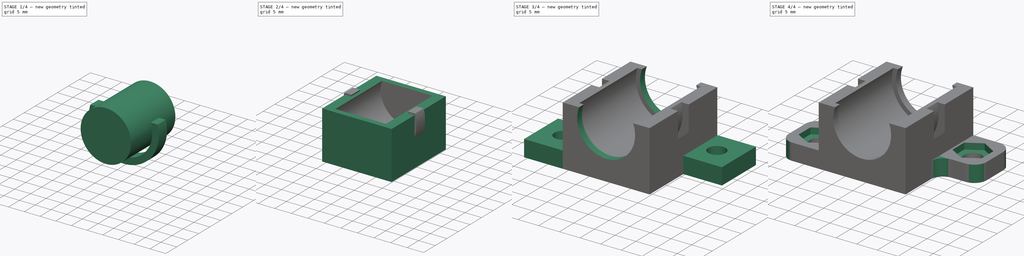
[diagram: build sequence overview — one tinted view per stage of 4, left to right]
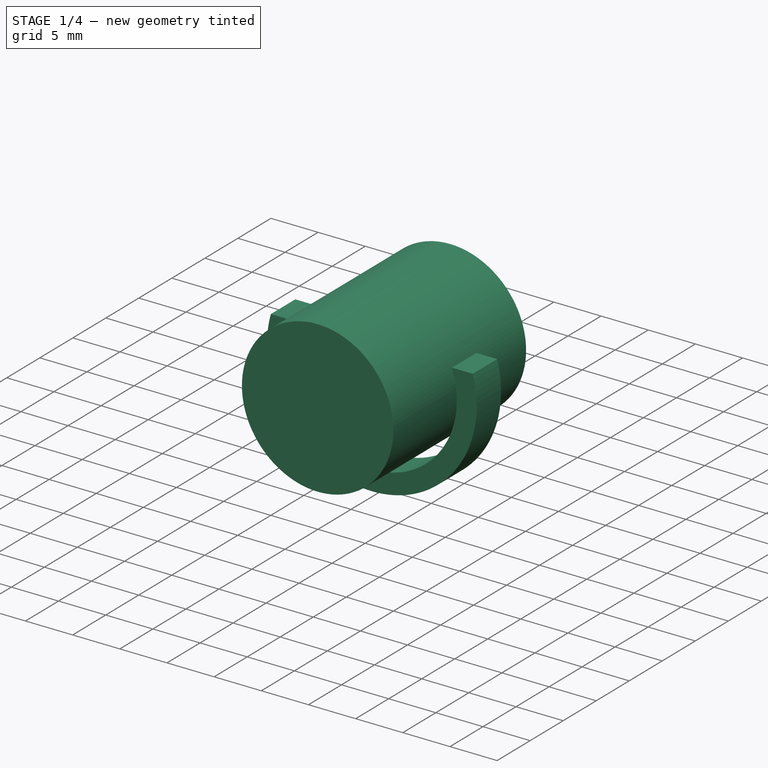
[diagram: stage 1 of 4 — iso view after this stage's code; geometry added in this stage tinted green]
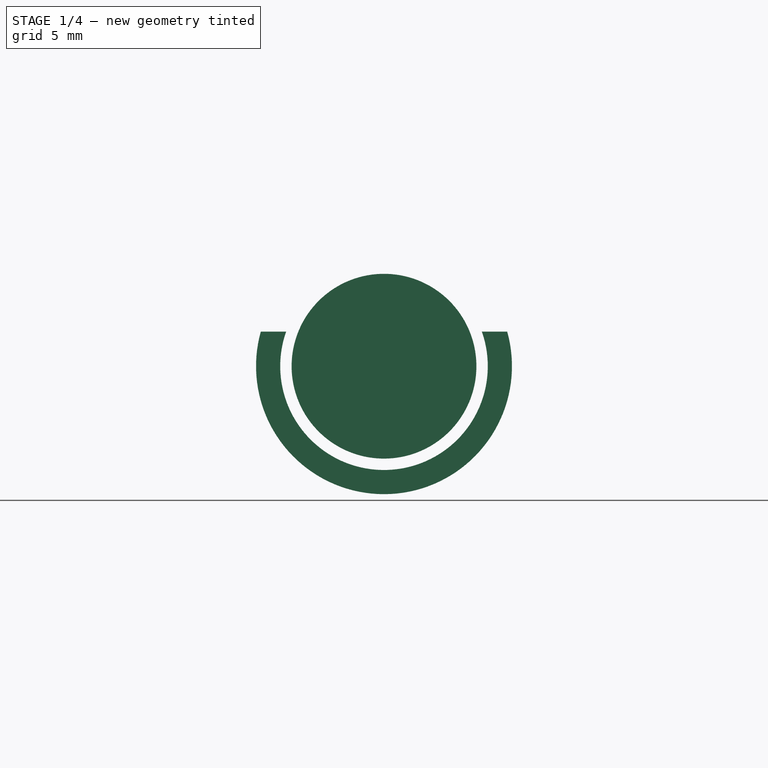
[diagram: stage 1 of 4 — front view after this stage's code; geometry added in this stage tinted green]
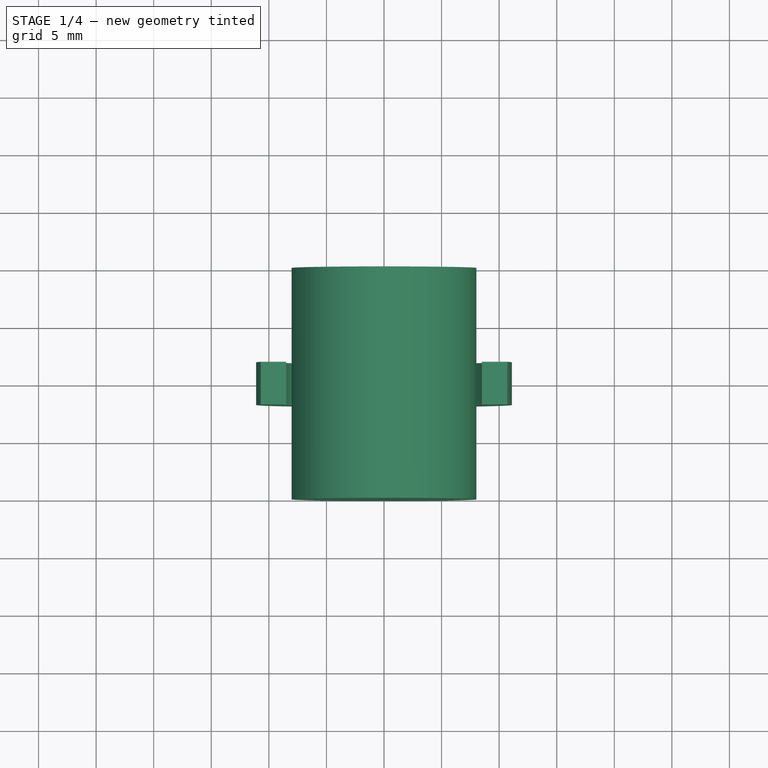
[diagram: stage 1 of 4 — top view after this stage's code; geometry added in this stage tinted green]
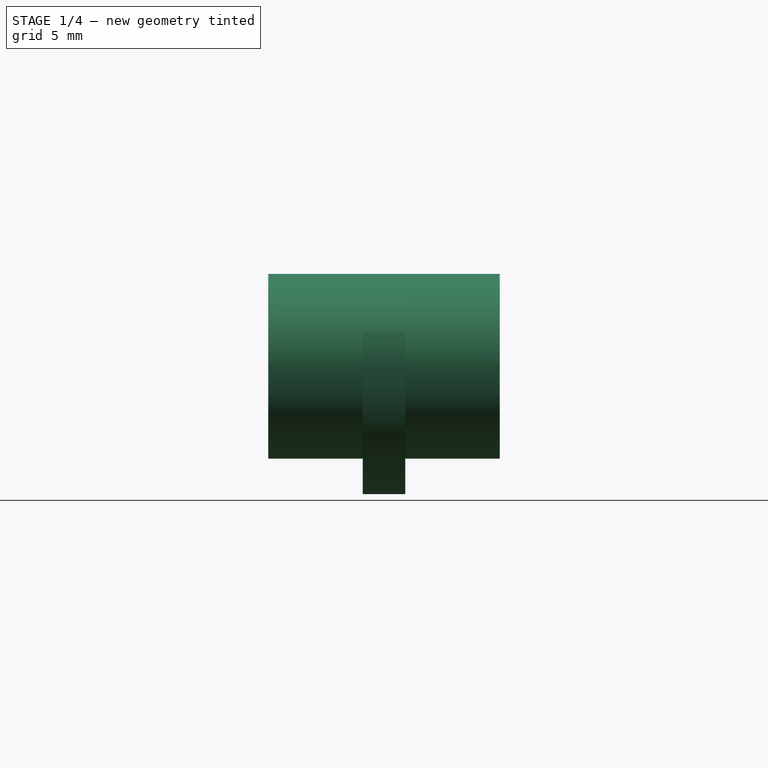
[diagram: stage 1 of 4 — right view after this stage's code; geometry added in this stage tinted green]
FCSTD DOCUMENT  (FreeCAD 0.15R4671 (Git))
Label: Halter Gleitlager XYZ v1
License: All rights reserved
LicenseURL: http://de.wikipedia.org/wiki/Alle_Rechte_vorbehalten
objects: Sketcher::SketchObject×6, PartDesign::Pad×4, Part::Cut×2, PartDesign::Pocket×2, PartDesign::Fillet×1
note: 21 computed .brp shape members not serialized (recipe doc carries the construction recipe); baked Part::Feature solids carry a one-line shape summary decoded from their .brp

FEATURE [Sketcher::SketchObject] Sketch001
  Placement = pos=(0,0,0) rot=(1,0,0;1.5708rad)
  sketch-geometry (1):
    g0: Circle CenterX=0 CenterY=12 CenterZ=0 NormalX=0 NormalY=0 NormalZ=1 Radius=8.025
  constraints (3):
    c: PointOnObject(g0,g-2)
    c: DistanceY(g-1,g0) = 12
    c: Radius(g0) = 8.025
FEATURE [PartDesign::Pad] Pad001
  Length = 20.1
  Length2 = 100
  Midplane = true
  Placement = pos=(0,0,0) rot=(1,0,0;1.5708rad)
  Sketch = -> Sketch001
  Type = 0
FEATURE [Sketcher::SketchObject] Sketch003
  Placement = pos=(0,0,0) rot=(1,0,0;1.5708rad)
  sketch-geometry (5):
    g0: Circle [constr] CenterX=0 CenterY=11.5 CenterZ=0 NormalX=0 NormalY=0 NormalZ=1 Radius=8.55
    g1: LineSegment StartX=-8.5 StartY=15 StartZ=0 EndX=-10.7 EndY=15 EndZ=0
    g2: LineSegment StartX=8.5 StartY=15 StartZ=0 EndX=10.7 EndY=15 EndZ=0
    g3: ArcOfCircle CenterX=0 CenterY=12 CenterZ=0 NormalX=0 NormalY=0 NormalZ=1 Radius=9.01388 StartAngle=2.8023 EndAngle=6.62248
    g4: ArcOfCircle CenterX=0 CenterY=12 CenterZ=0 NormalX=0 NormalY=0 NormalZ=1 Radius=11.1126 StartAngle=2.86824 EndAngle=6.55654
  constraints (19):
    c: PointOnObject(g0,g-2)
    c: Radius(g0) = 8.55
    c: DistanceY(g-1,g0) = 11.5
    c: Symmetric(g1,g2,g-2)
    c: DistanceY(g-1,g2) = 15
    c: DistanceX(g1,g2) = 17
    c: Symmetric(g1,g2,g-2)
    c: Equal(g2,g1)
    c: Horizontal(g2)
    c: Horizontal(g1)
    c: DistanceX(g2) = 2.2
    c: PointOnObject(g3,g-2)
    c: Coincident(g3,g1)
    c: Coincident(g3,g2)
    c: DistanceY(g-1,g3) = 12
    c: PointOnObject(g4,g-2)
    c: Coincident(g4,g1)
    c: Coincident(g4,g2)
    c: DistanceY(g-1,g4) = 12
FEATURE [PartDesign::Pad] Pad002
  Length = 3.7
  Length2 = 100
  Midplane = true
  Placement = pos=(0,0,0) rot=(1,0,0;1.5708rad)
  Sketch = -> Sketch003
  Type = 0
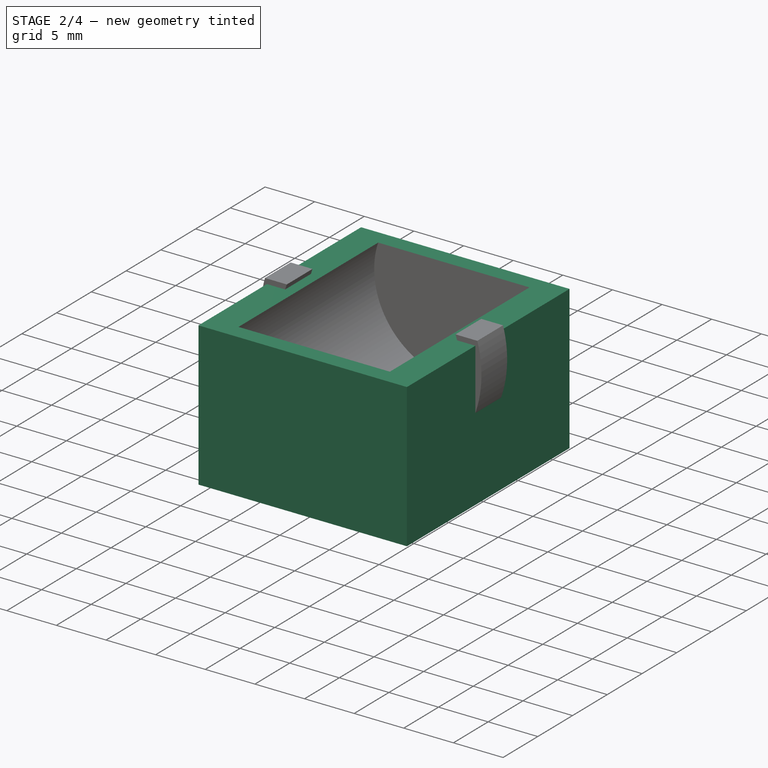
[diagram: stage 2 of 4 — iso view after this stage's code; geometry added in this stage tinted green]
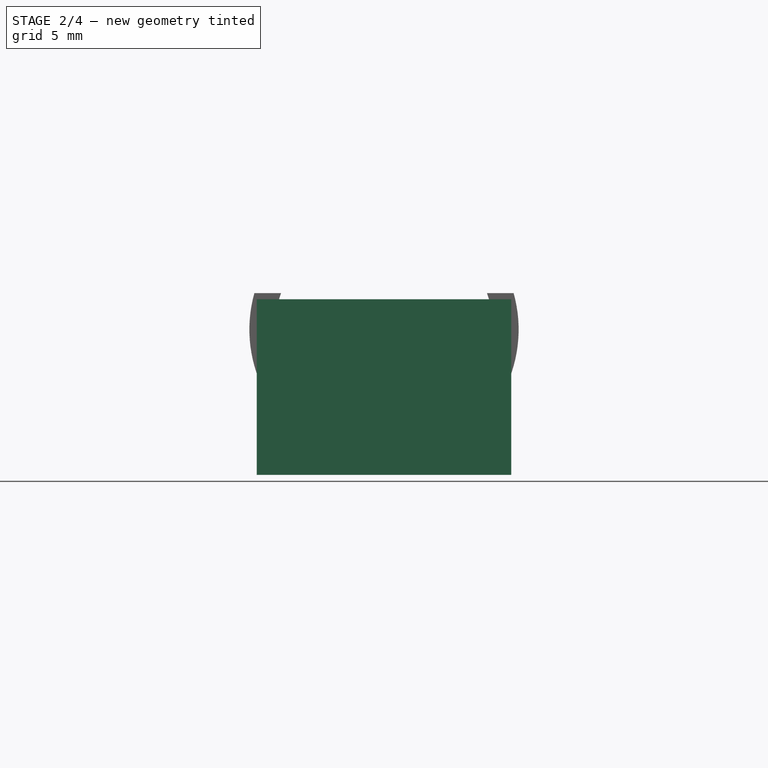
[diagram: stage 2 of 4 — front view after this stage's code; geometry added in this stage tinted green]
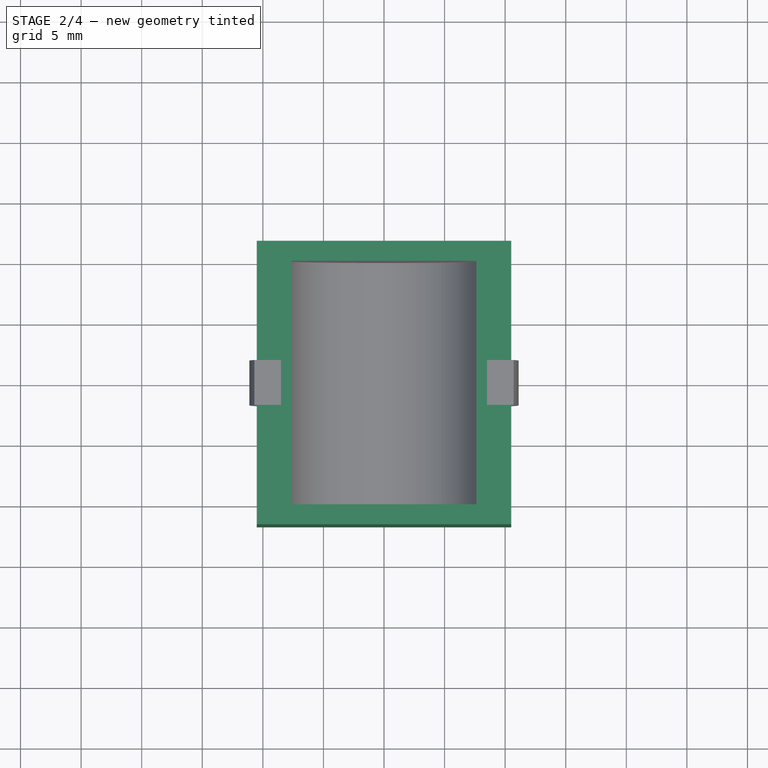
[diagram: stage 2 of 4 — top view after this stage's code; geometry added in this stage tinted green]
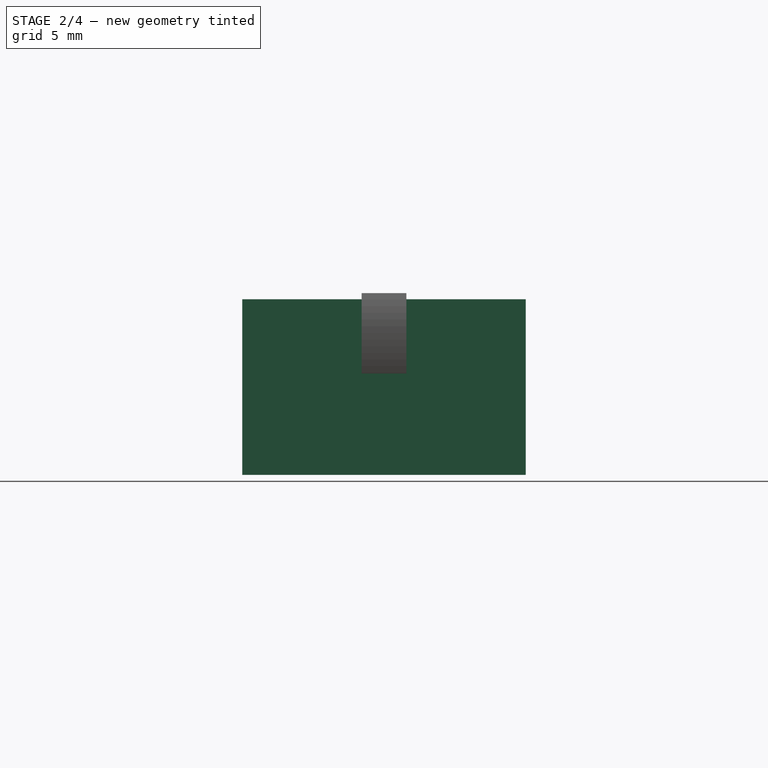
[diagram: stage 2 of 4 — right view after this stage's code; geometry added in this stage tinted green]
FEATURE [Sketcher::SketchObject] Sketch
  sketch-geometry (4):
    g0: LineSegment StartX=-10.5 StartY=11.7 StartZ=0 EndX=10.5 EndY=11.7 EndZ=0
    g1: LineSegment StartX=10.5 StartY=11.7 StartZ=0 EndX=10.5 EndY=-11.7 EndZ=0
    g2: LineSegment StartX=10.5 StartY=-11.7 StartZ=0 EndX=-10.5 EndY=-11.7 EndZ=0
    g3: LineSegment StartX=-10.5 StartY=-11.7 StartZ=0 EndX=-10.5 EndY=11.7 EndZ=0
  constraints (12):
    c: Coincident(g0,g1)
    c: Coincident(g1,g2)
    c: Coincident(g2,g3)
    c: Coincident(g3,g0)
    c: Horizontal(g0)
    c: Horizontal(g2)
    c: Vertical(g1)
    c: Vertical(g3)
    c: Symmetric(g1,g2,g-2)
    c: Symmetric(g0,g1,g-1)
    c: DistanceX(g0) = 21
    c: DistanceY(g1) = -23.4
FEATURE [PartDesign::Pad] Pad
  Length = 14.5
  Length2 = 100
  Sketch = -> Sketch
  Type = 0
FEATURE [Part::Cut] Cut
  Base = -> Pad
  Tool = -> Pad001
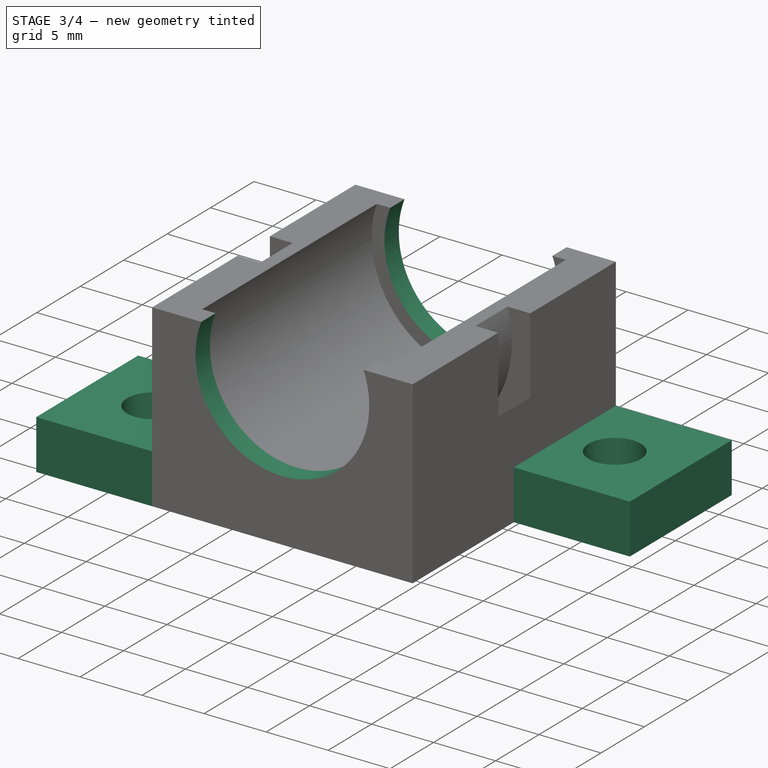
[diagram: stage 3 of 4 — iso view after this stage's code; geometry added in this stage tinted green]
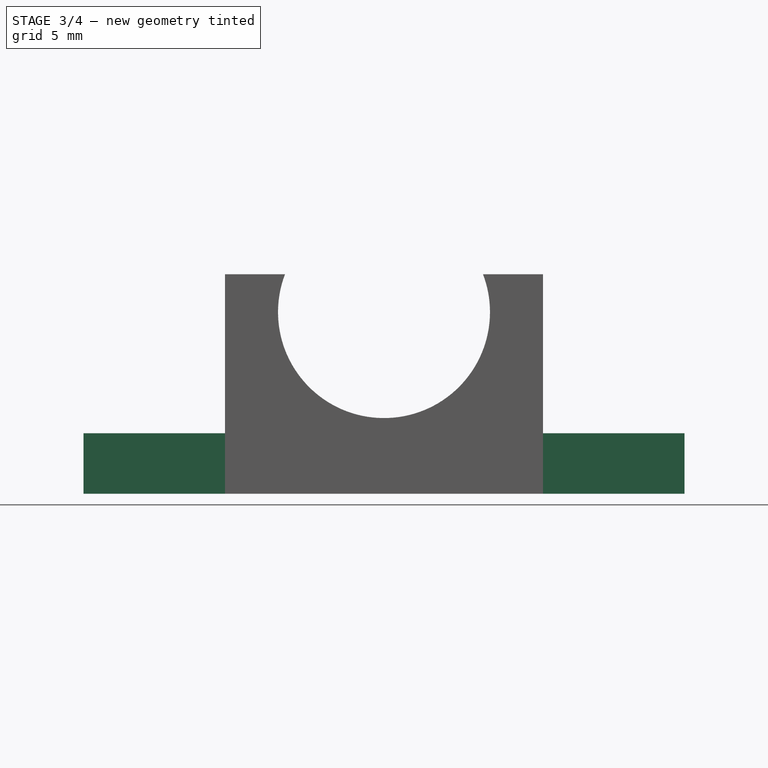
[diagram: stage 3 of 4 — front view after this stage's code; geometry added in this stage tinted green]
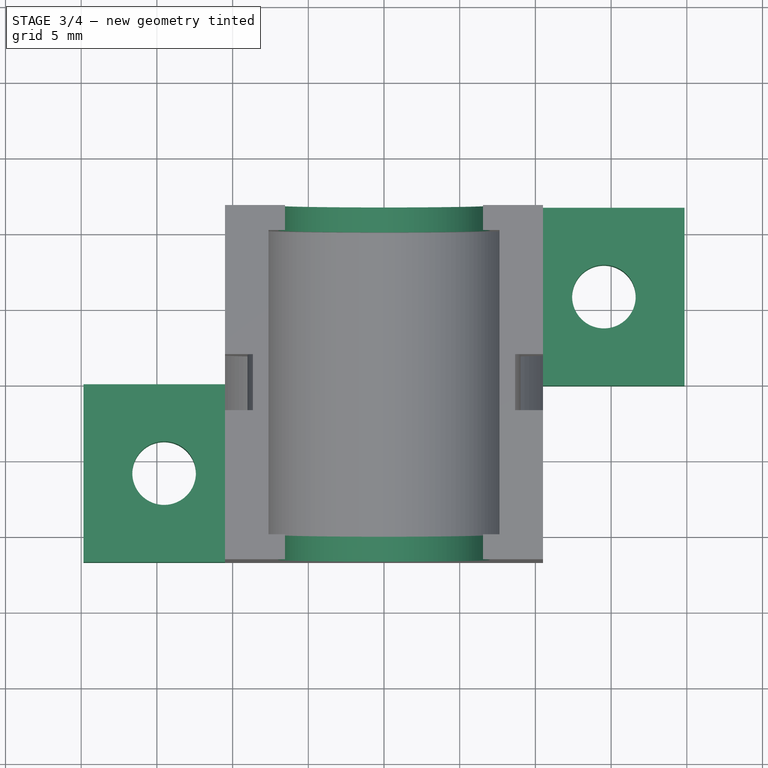
[diagram: stage 3 of 4 — top view after this stage's code; geometry added in this stage tinted green]
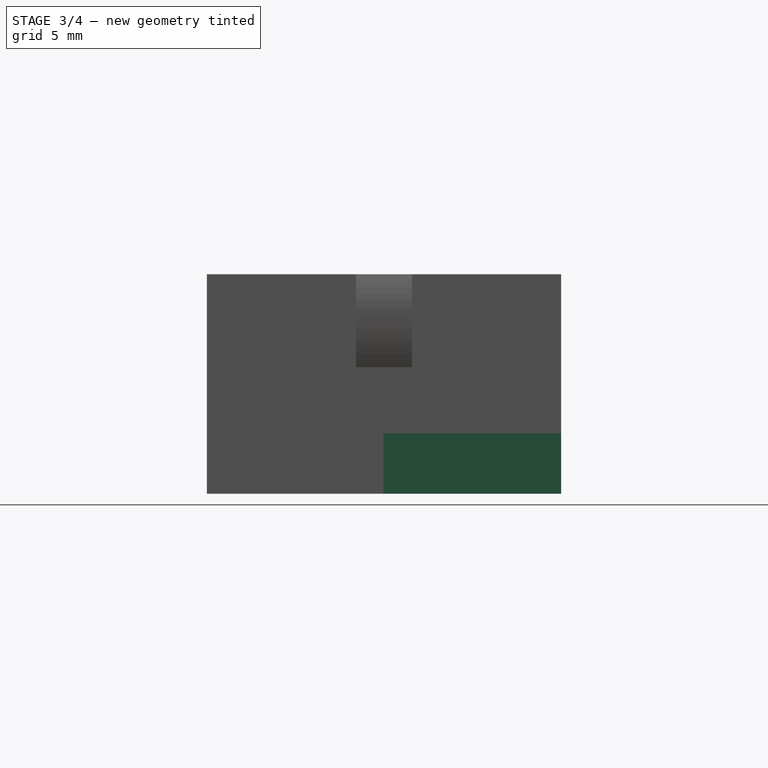
[diagram: stage 3 of 4 — right view after this stage's code; geometry added in this stage tinted green]
FEATURE [Sketcher::SketchObject] Sketch002
  Placement = pos=(0,-11.7,0) rot=(1,0,0;1.5708rad)
  Support = -> Cut [Face6]
  sketch-geometry (1):
    g0: Circle CenterX=0 CenterY=12 CenterZ=0 NormalX=0 NormalY=0 NormalZ=1 Radius=7
  constraints (3):
    c: PointOnObject(g0,g-2)
    c: DistanceY(g-1,g0) = 12
    c: Radius(g0) = 7
FEATURE [PartDesign::Pocket] Pocket
  Length = 5
  Sketch = -> Sketch002
  Type = 1
FEATURE [Part::Cut] Cut001
  Base = -> Pocket
  Tool = -> Pad002
FEATURE [Sketcher::SketchObject] Sketch004
  ExternalGeometry = -> [Cut001]
  Placement = pos=(0,25,0) rot=(0,0,1;0rad)
  Support = -> Cut001 [Face2]
  sketch-geometry (19):
    g0: LineSegment [constr] StartX=-11 StartY=3.79452 StartZ=0 EndX=-11 EndY=7.86484 EndZ=0
    g1: LineSegment [constr] StartX=-11 StartY=7.86484 StartZ=0 EndX=-14.525 EndY=9.9 EndZ=0
    g2: LineSegment [constr] StartX=-14.525 StartY=9.9 StartZ=0 EndX=-18.05 EndY=7.86484 EndZ=0
    g3: LineSegment [constr] StartX=-18.05 StartY=7.86484 StartZ=0 EndX=-18.05 EndY=3.79452 EndZ=0
    g4: LineSegment [constr] StartX=-18.05 StartY=3.79452 StartZ=0 EndX=-14.525 EndY=1.75936 EndZ=0
    g5: LineSegment [constr] StartX=-14.525 StartY=1.75936 StartZ=0 EndX=-11 EndY=3.79452 EndZ=0
    g6: Circle [constr] CenterX=-14.525 CenterY=5.82968 CenterZ=0 NormalX=0 NormalY=0 NormalZ=1 Radius=4.07032
    g7: Circle CenterX=-14.525 CenterY=5.82968 CenterZ=0 NormalX=0 NormalY=0 NormalZ=1 Radius=2.1
    g8: Circle CenterX=14.525 CenterY=-5.82968 CenterZ=0 NormalX=0 NormalY=0 NormalZ=1 Radius=2.1
    g9: LineSegment StartX=-19.85 StartY=11.7 StartZ=0 EndX=-19.85 EndY=-0.0406388 EndZ=0
    g10: LineSegment StartX=-19.85 StartY=-0.0406388 StartZ=0 EndX=-10.5 EndY=-0.0406388 EndZ=0
    g11: LineSegment StartX=19.85 StartY=-11.7 StartZ=0 EndX=19.85 EndY=0.0406388 EndZ=0
    g12: LineSegment StartX=19.85 StartY=0.0406388 StartZ=0 EndX=10.5 EndY=0.0406388 EndZ=0
    g13: LineSegment [constr] StartX=-14.525 StartY=5.82968 StartZ=0 EndX=0 EndY=0 EndZ=0
    g14: LineSegment [constr] StartX=0 StartY=0 StartZ=0 EndX=14.525 EndY=-5.82968 EndZ=0
    g15: LineSegment StartX=19.85 StartY=-11.7 StartZ=0 EndX=10.5 EndY=-11.7 EndZ=0
    g16: LineSegment StartX=10.5 StartY=-11.7 StartZ=0 EndX=10.5 EndY=0.0406388 EndZ=0
    g17: LineSegment StartX=-19.85 StartY=11.7 StartZ=0 EndX=-10.5 EndY=11.7 EndZ=0
    g18: LineSegment StartX=-10.5 StartY=11.7 StartZ=0 EndX=-10.5 EndY=-0.0406388 EndZ=0
  constraints (48):
    c: Coincident(g0,g1)
    c: Coincident(g1,g2)
    c: Coincident(g2,g3)
    c: Coincident(g3,g4)
    c: Coincident(g4,g5)
    c: Coincident(g5,g0)
    c: Equal(g0, g1-g5) x5
    c: PointOnObject(g0,g6)
    c: PointOnObject(g1,g6)
    c: PointOnObject(g2,g6)
    c: PointOnObject(g3,g6)
    c: PointOnObject(g4,g6)
    c: PointOnObject(g5,g6)
    c: Vertical(g0)
    c: Distance(g0,g3) = 7.05
    c: Coincident(g7,g6)
    c: Radius(g7) = 2.1
    c: Equal(g7,g8)
    c: DistanceX(g0,g-3) = 0.5
    c: DistanceY(g1,g-3) = 1.8
    c: Vertical(g9)
    c: Coincident(g9,g10)
    c: Horizontal(g10)
    c: Vertical(g11)
    c: Coincident(g11,g12)
    c: Horizontal(g12)
    c: Equal(g9,g11)
    c: Equal(g12,g10)
    c: DistanceY(g9,g4) = 1.8
    c: DistanceX(g2,g9) = -1.8
    c: Coincident(g13,g6)
    c: Coincident(g13,g-1)
    c: Coincident(g13,g14)
    c: Coincident(g14,g8)
    c: Equal(g13,g14)
    c: Parallel(g14,g13)
    c: Coincident(g11,g15)
    c: Coincident(g15,g-4)
    c: Horizontal(g15)
    c: Coincident(g15,g16)
    c: Coincident(g16,g12)
    c: Vertical(g16)
    c: Coincident(g9,g17)
    c: Horizontal(g17)
    c: Coincident(g17,g18)
    c: Coincident(g18,g10)
    c: Vertical(g18)
    c: Coincident(g17,g-3)
FEATURE [PartDesign::Pad] Pad003
  Length = 4
  Length2 = 100
  Reversed = true
  Sketch = -> Sketch004
  Type = 0
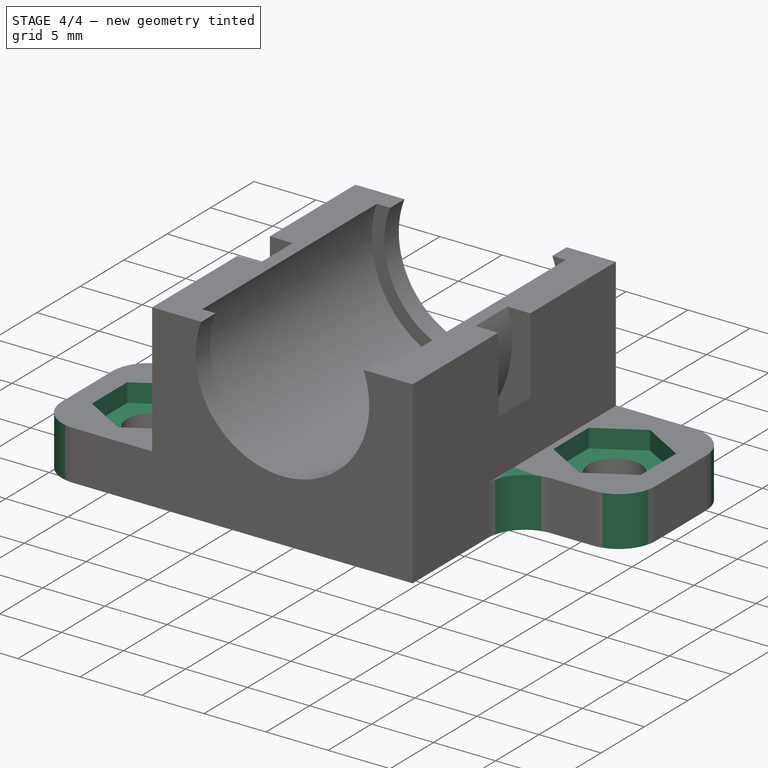
[diagram: stage 4 of 4 — iso view after this stage's code; geometry added in this stage tinted green]
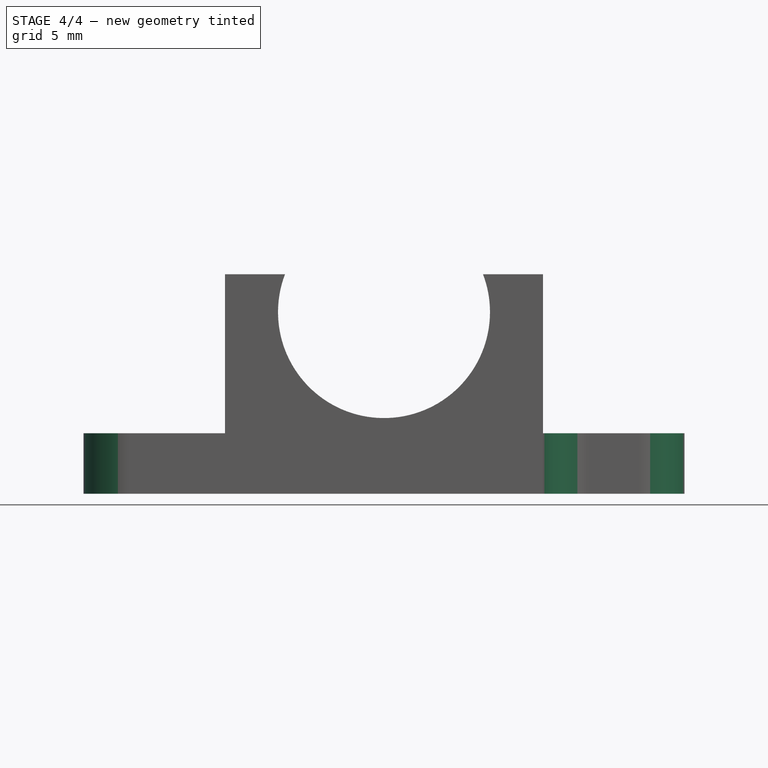
[diagram: stage 4 of 4 — front view after this stage's code; geometry added in this stage tinted green]
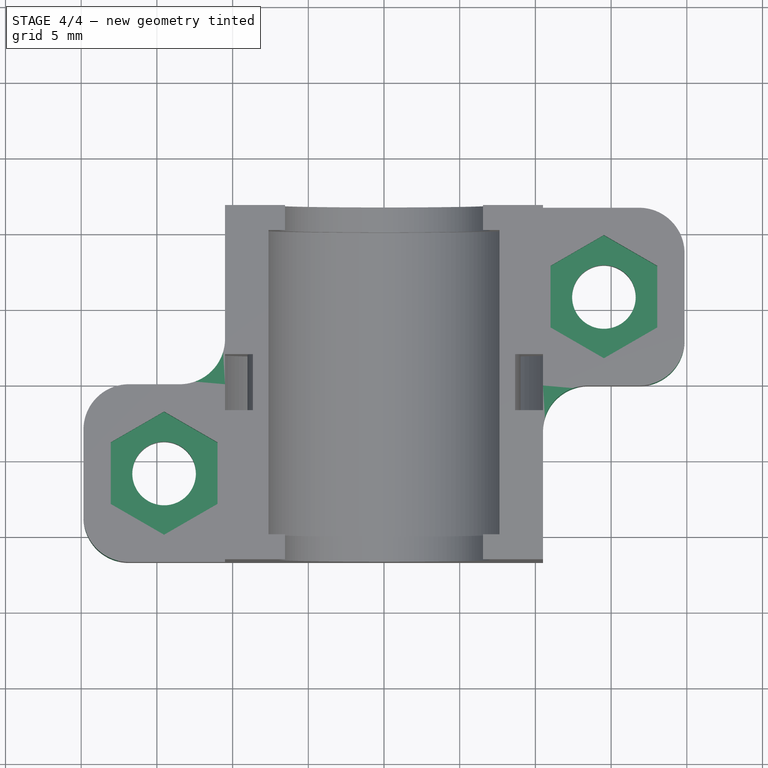
[diagram: stage 4 of 4 — top view after this stage's code; geometry added in this stage tinted green]
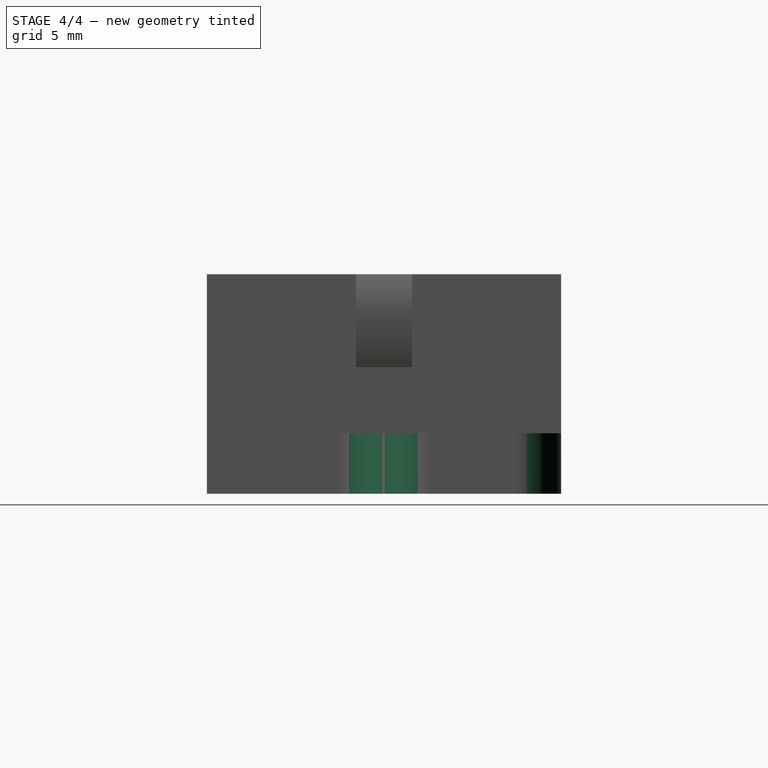
[diagram: stage 4 of 4 — right view after this stage's code; geometry added in this stage tinted green]
FEATURE [Sketcher::SketchObject] Sketch005
  ExternalGeometry = -> [Pad003]
  Placement = pos=(0,0,4) rot=(0,0,1;0rad)
  Support = -> Pad003 [Face27]
  sketch-geometry (14):
    g0: LineSegment StartX=14.525 StartY=1.75936 StartZ=0 EndX=18.05 EndY=3.79452 EndZ=0
    g1: LineSegment StartX=18.05 StartY=3.79452 StartZ=0 EndX=18.05 EndY=7.86484 EndZ=0
    g2: LineSegment StartX=18.05 StartY=7.86484 StartZ=0 EndX=14.525 EndY=9.9 EndZ=0
    g3: LineSegment StartX=14.525 StartY=9.9 StartZ=0 EndX=11 EndY=7.86484 EndZ=0
    g4: LineSegment StartX=11 StartY=7.86484 StartZ=0 EndX=11 EndY=3.79452 EndZ=0
    g5: LineSegment StartX=11 StartY=3.79452 StartZ=0 EndX=14.525 EndY=1.75936 EndZ=0
    g6: Circle [constr] CenterX=14.525 CenterY=5.82968 CenterZ=0 NormalX=0 NormalY=0 NormalZ=1 Radius=4.07032
    g7: LineSegment StartX=-14.525 StartY=-9.9 StartZ=0 EndX=-11 EndY=-7.86484 EndZ=0
    g8: LineSegment StartX=-11 StartY=-7.86484 StartZ=0 EndX=-11 EndY=-3.79452 EndZ=0
    g9: LineSegment StartX=-11 StartY=-3.79452 StartZ=0 EndX=-14.525 EndY=-1.75936 EndZ=0
    g10: LineSegment StartX=-14.525 StartY=-1.75936 StartZ=0 EndX=-18.05 EndY=-3.79452 EndZ=0
    g11: LineSegment StartX=-18.05 StartY=-3.79452 StartZ=0 EndX=-18.05 EndY=-7.86484 EndZ=0
    g12: LineSegment StartX=-18.05 StartY=-7.86484 StartZ=0 EndX=-14.525 EndY=-9.9 EndZ=0
    g13: Circle [constr] CenterX=-14.525 CenterY=-5.82968 CenterZ=0 NormalX=0 NormalY=0 NormalZ=1 Radius=4.07032
  constraints (32):
    c: Coincident(g0,g1)
    c: Coincident(g1,g2)
    c: Coincident(g2,g3)
    c: Coincident(g3,g4)
    c: Coincident(g4,g5)
    c: Coincident(g5,g0)
    c: Equal(g0, g1-g5) x5
    c: PointOnObject(g0,g6)
    c: PointOnObject(g1,g6)
    c: PointOnObject(g2,g6)
    c: PointOnObject(g3,g6)
    c: PointOnObject(g4,g6)
    c: PointOnObject(g5,g6)
    c: Vertical(g4)
    c: Coincident(g7,g8)
    c: Coincident(g8,g9)
    c: Coincident(g9,g10)
    c: Coincident(g10,g11)
    c: Coincident(g11,g12)
    c: Coincident(g12,g7)
    c: Equal(g7, g8-g12) x5
    c: PointOnObject(g7,g13)
    c: PointOnObject(g8,g13)
    c: PointOnObject(g9,g13)
    c: PointOnObject(g10,g13)
    c: PointOnObject(g11,g13)
    c: PointOnObject(g12,g13)
    c: Vertical(g11)
    c: Equal(g13,g6)
    c: Distance(g4,g0) = 7.05
    c: Coincident(g13,g-3)
    c: Coincident(g-4,g6)
FEATURE [PartDesign::Pocket] Pocket001
  Length = 1.5
  Sketch = -> Sketch005
  Type = 0
FEATURE [PartDesign::Fillet] Fillet
  Base = -> Pocket001 [Edge80,Edge69,Edge87,Edge58,Edge65,Edge45]
  Radius = 3
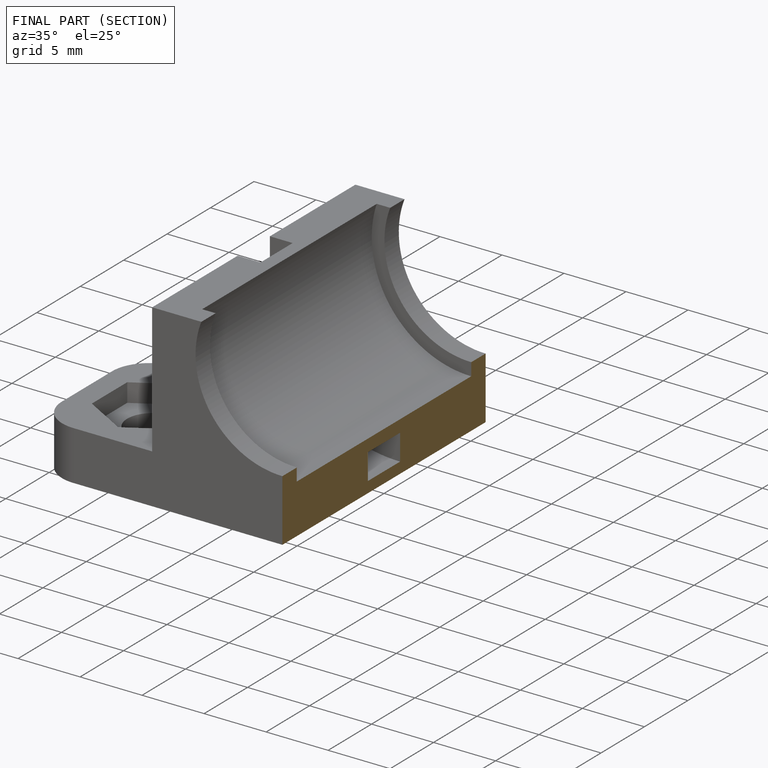
[diagram: finished part — half-section view (interior)]
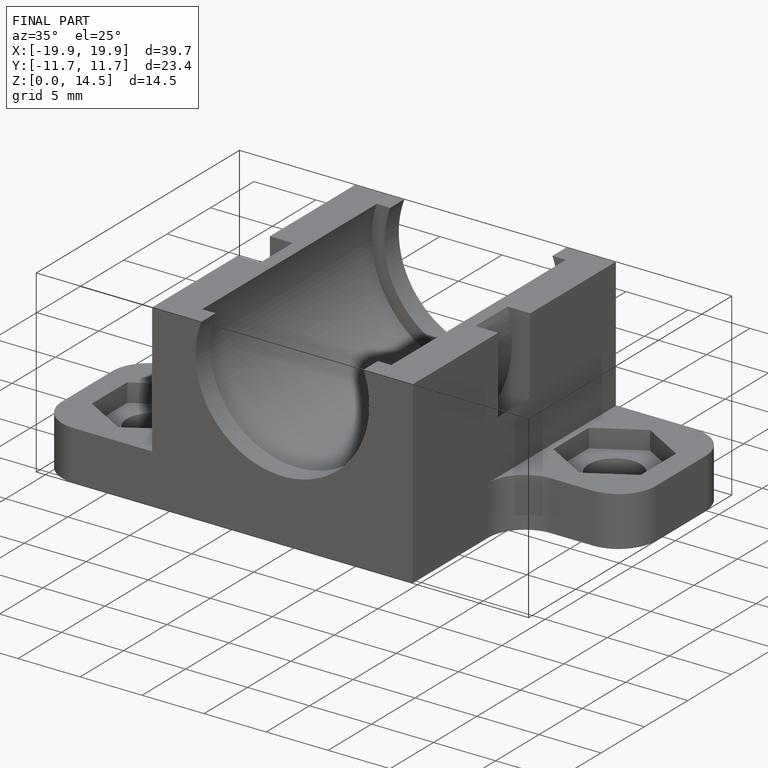
[diagram: finished part — iso view with bounding-box wireframe]
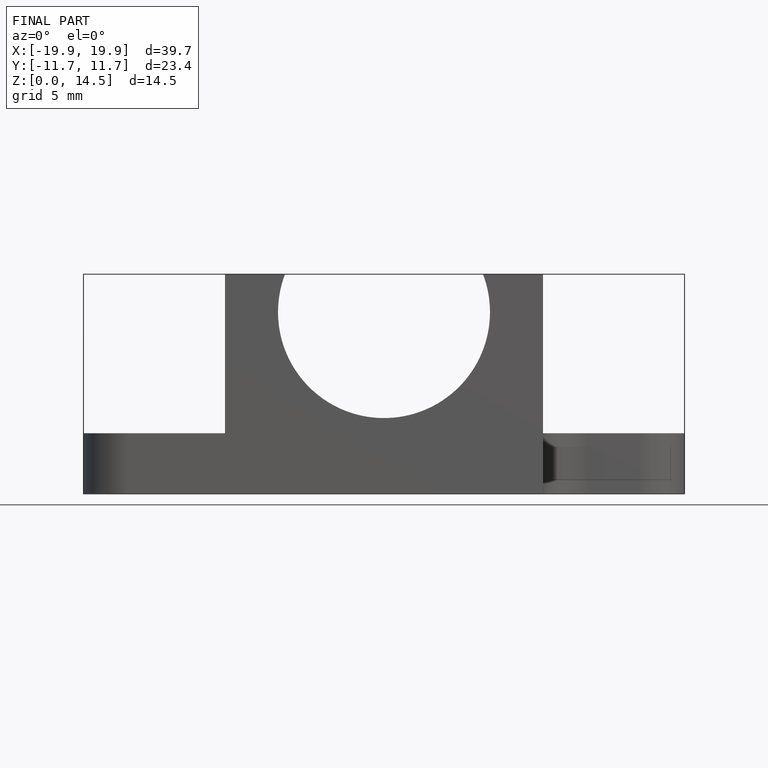
[diagram: finished part — front view with bounding-box wireframe]
